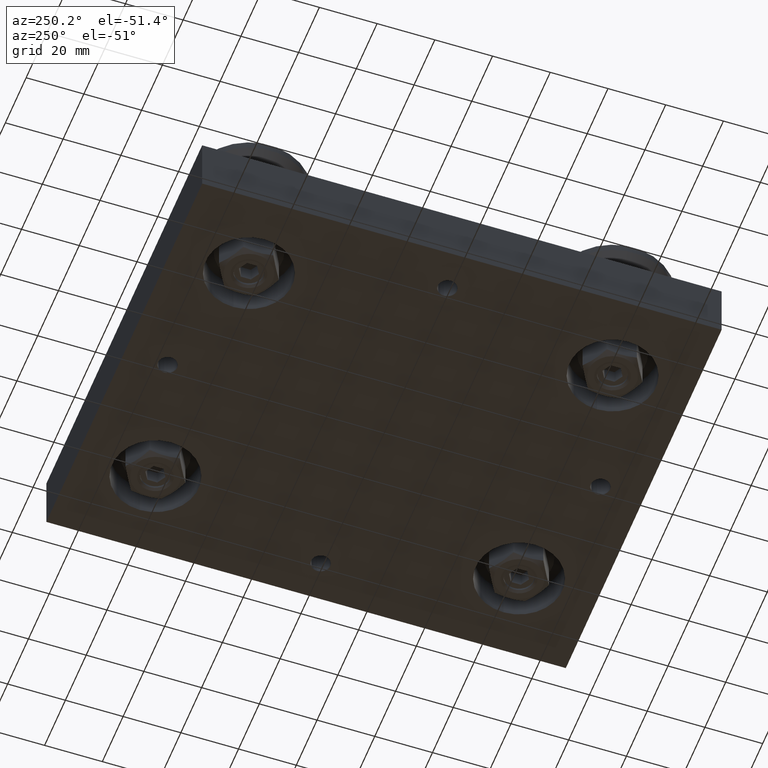
[diagram: clean part render]
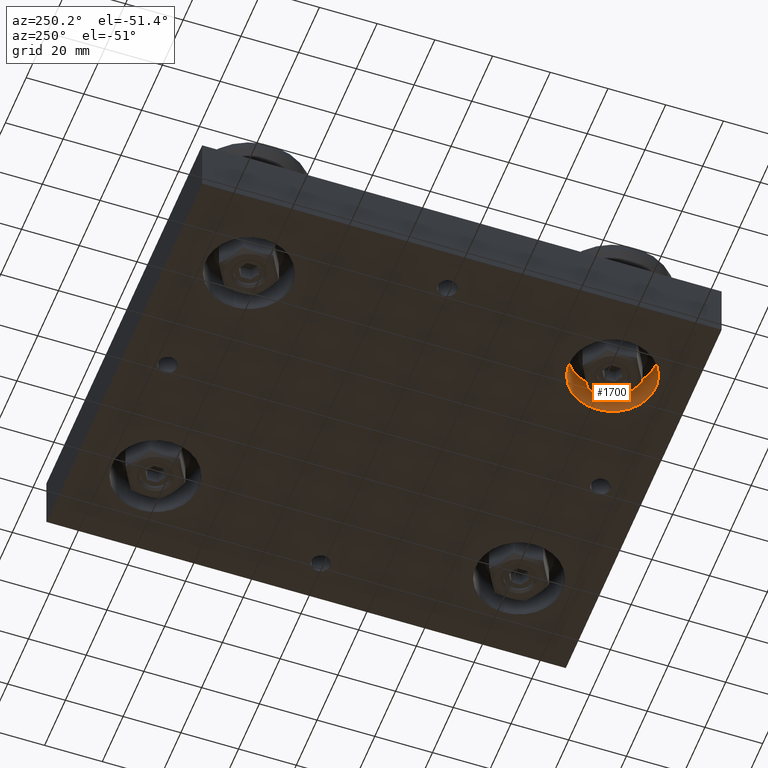
[diagram: same view with one face highlighted and labeled with its STEP entity id]
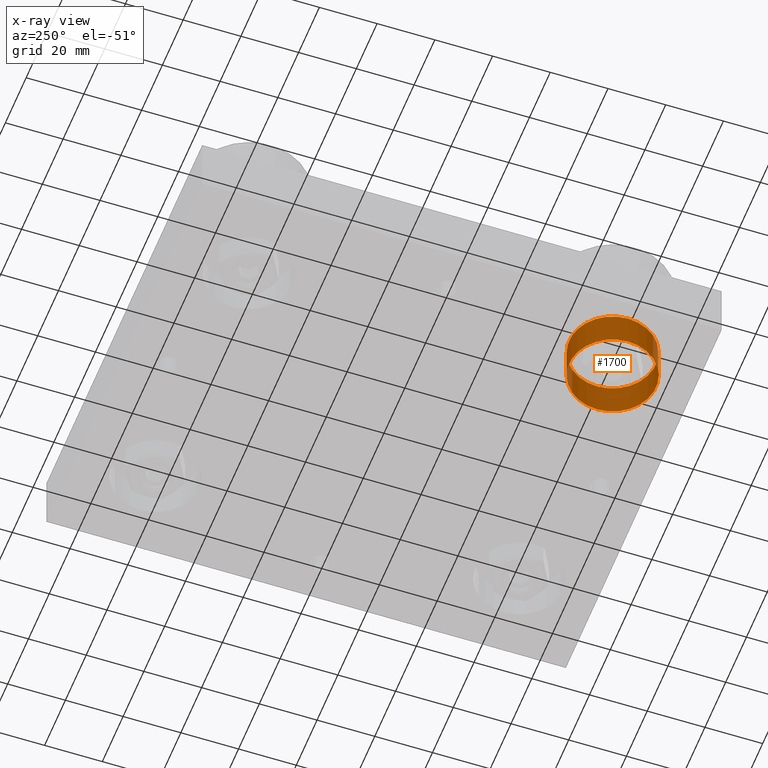
[diagram: x-ray of the same camera — body ghosted, the highlighted face saturated]
A machine part, auxiliary view. The second image highlights one B-rep face of the part: STEP entity #1700.
The next image is the same camera in x-ray: the body ghosted, the highlighted face saturated — about 0% of this face is hidden behind the body in this view.
In plain terms, the highlighted cylindrical surface (bore or boss wall) has radius 15 mm, axis along (0, 0, -1).
Its self-contained STEP definition (entity closure, byte-faithful):
#280=FACE_OUTER_BOUND('',#385,.T.);
#385=EDGE_LOOP('',(#1244,#1245,#1246,#1247));
#524=LINE('',#2764,#653);
#653=VECTOR('',#2235,15.);
#786=CIRCLE('',#2004,15.);
#788=CIRCLE('',#2007,15.);
#867=VERTEX_POINT('',#2757);
#869=VERTEX_POINT('',#2762);
#1016=EDGE_CURVE('',#867,#867,#786,.T.);
#1018=EDGE_CURVE('',#869,#869,#788,.T.);
#1019=EDGE_CURVE('',#869,#867,#524,.T.);
#1244=ORIENTED_EDGE('',*,*,#1018,.F.);
#1245=ORIENTED_EDGE('',*,*,#1019,.T.);
#1246=ORIENTED_EDGE('',*,*,#1016,.F.);
#1247=ORIENTED_EDGE('',*,*,#1019,.F.);
#1674=CYLINDRICAL_SURFACE('',#2006,15.);
#1700=ADVANCED_FACE('',(#280),#1674,.F.);
#2004=AXIS2_PLACEMENT_3D('',#2758,#2227,#2228);
#2006=AXIS2_PLACEMENT_3D('',#2761,#2231,#2232);
#2007=AXIS2_PLACEMENT_3D('',#2763,#2233,#2234);
#2227=DIRECTION('center_axis',(0.,0.,1.));
#2228=DIRECTION('ref_axis',(1.,0.,0.));
#2231=DIRECTION('center_axis',(0.,0.,1.));
#2232=DIRECTION('ref_axis',(1.,0.,0.));
#2233=DIRECTION('center_axis',(0.,0.,-1.));
#2234=DIRECTION('ref_axis',(1.,0.,0.));
#2235=DIRECTION('',(0.,0.,-1.));
#2757=CARTESIAN_POINT('',(30.,-63.,-2.));
#2758=CARTESIAN_POINT('Origin',(45.,-63.,-2.));
#2761=CARTESIAN_POINT('Origin',(45.,-63.,4.));
#2762=CARTESIAN_POINT('',(30.,-63.,10.));
#2763=CARTESIAN_POINT('Origin',(45.,-63.,10.));
#2764=CARTESIAN_POINT('',(30.,-63.,4.));